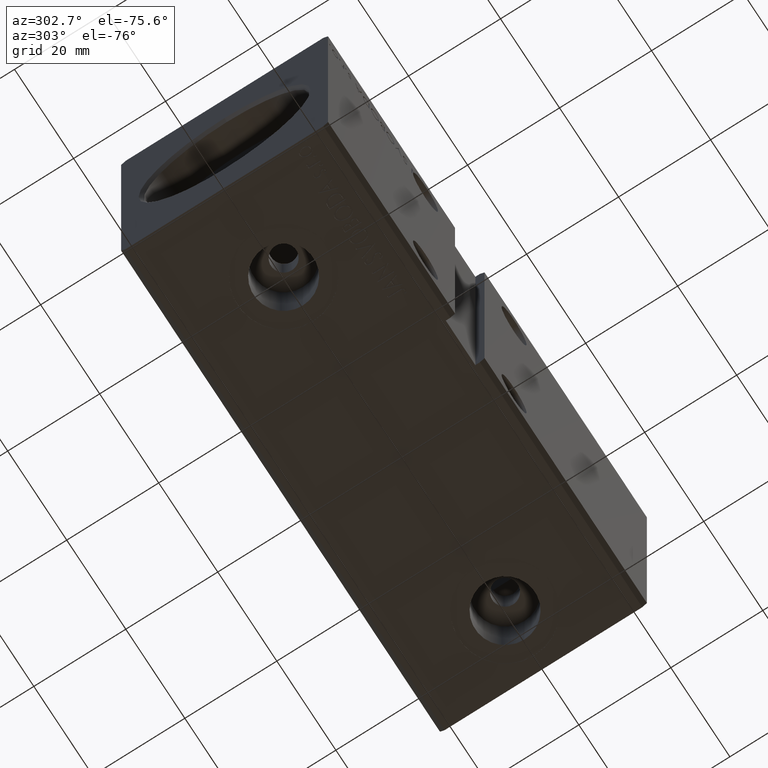
[diagram: clean part render]
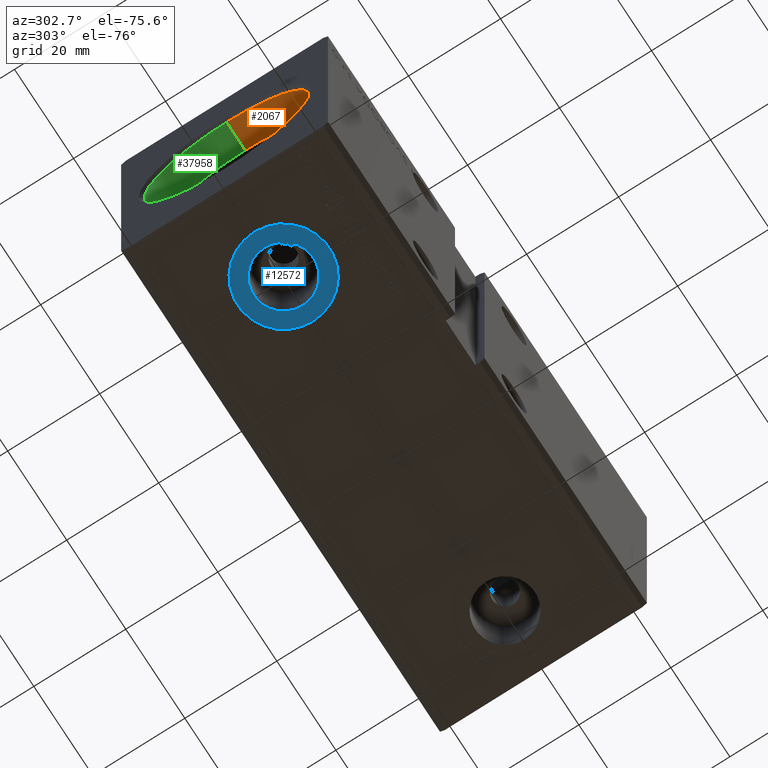
[diagram: same view with three faces highlighted in distinct colors, each labeled with its STEP entity id]
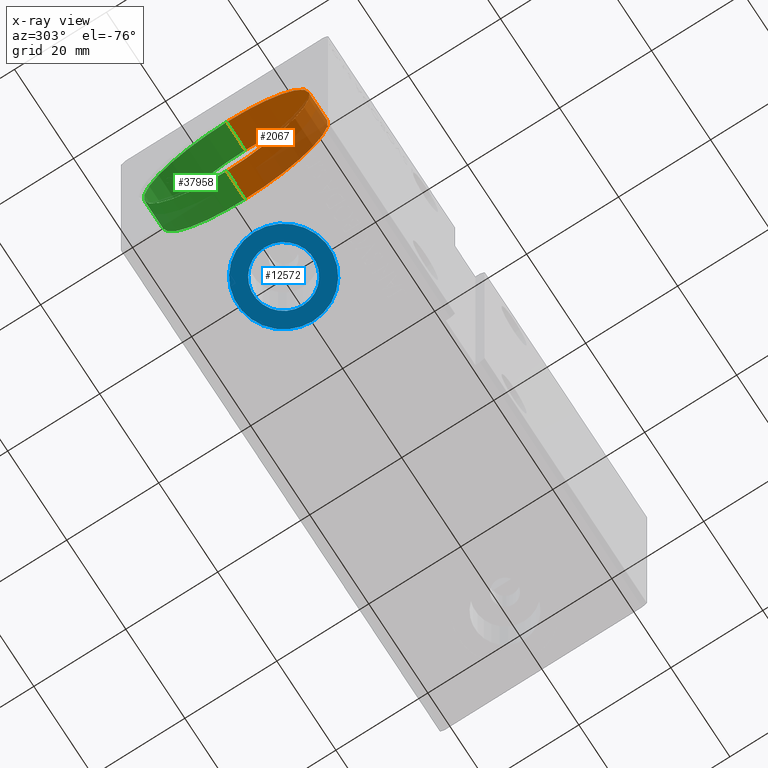
[diagram: x-ray of the same camera — body ghosted, the three highlighted faces saturated]
A machine part, auxiliary view with three faces highlighted in distinct colors.
The next image is the same camera in x-ray (body ghosted, the three faces saturated) — at least one of them is partly hidden behind the body in this view.
Their STEP definitions:

[orange] entity #2067 — the highlighted cylindrical surface (partial cylindrical patch) has radius 18 mm, axis along (-1, -0, -0).
#1078 = CARTESIAN_POINT ( 'NONE',  ( 7.000000000000000000, 0.000000000000000000, 0.000000000000000000 ) ) ;
#2067 = ADVANCED_FACE ( 'NONE', ( #19188 ), #12891, .F. ) ;
#2578 = DIRECTION ( 'NONE',  ( -1.000000000000000000, -0.000000000000000000, -0.000000000000000000 ) ) ;
#2630 = ORIENTED_EDGE ( 'NONE', *, *, #33976, .F. ) ;
#4159 = CIRCLE ( 'NONE', #20358, 18.00000000000000000 ) ;
#4704 = DIRECTION ( 'NONE',  ( -1.000000000000000000, 0.000000000000000000, 0.000000000000000000 ) ) ;
#5691 = CARTESIAN_POINT ( 'NONE',  ( 0.6999999999999749756, 0.000000000000000000, 0.000000000000000000 ) ) ;
#8203 = LINE ( 'NONE', #30122, #35427 ) ;
#8931 = EDGE_CURVE ( 'NONE', #12259, #38216, #30375, .T. ) ;
#9792 = VERTEX_POINT ( 'NONE', #25535 ) ;
#10109 = CARTESIAN_POINT ( 'NONE',  ( 7.000000000000000000, 2.204364238465235428E-15, -18.00000000000000000 ) ) ;
#10661 = AXIS2_PLACEMENT_3D ( 'NONE', #5691, #14839, #39817 ) ;
#10937 = ORIENTED_EDGE ( 'NONE', *, *, #28567, .T. ) ;
#12259 = VERTEX_POINT ( 'NONE', #10109 ) ;
#12891 = CYLINDRICAL_SURFACE ( 'NONE', #19920, 18.00000000000000000 ) ;
#13664 = EDGE_CURVE ( 'NONE', #12259, #9792, #4159, .T. ) ;
#13816 = CARTESIAN_POINT ( 'NONE',  ( 0.6999999999999749756, 2.204364238465235428E-15, -18.00000000000000000 ) ) ;
#14839 = DIRECTION ( 'NONE',  ( -1.000000000000000000, 0.000000000000000000, 0.000000000000000000 ) ) ;
#16132 = DIRECTION ( 'NONE',  ( -1.000000000000000000, -0.000000000000000000, -0.000000000000000000 ) ) ;
#16325 = CARTESIAN_POINT ( 'NONE',  ( 7.000000000000000000, 0.000000000000000000, 0.000000000000000000 ) ) ;
#19188 = FACE_OUTER_BOUND ( 'NONE', #23219, .T. ) ;
#19345 = VERTEX_POINT ( 'NONE', #29396 ) ;
#19920 = AXIS2_PLACEMENT_3D ( 'NONE', #16325, #16132, #28514 ) ;
#20358 = AXIS2_PLACEMENT_3D ( 'NONE', #1078, #4704, #38041 ) ;
#20412 = CIRCLE ( 'NONE', #10661, 18.00000000000000000 ) ;
#23219 = EDGE_LOOP ( 'NONE', ( #24792, #30816, #10937, #2630 ) ) ;
#24042 = DIRECTION ( 'NONE',  ( -1.000000000000000000, -0.000000000000000000, -0.000000000000000000 ) ) ;
#24792 = ORIENTED_EDGE ( 'NONE', *, *, #13664, .F. ) ;
#25535 = CARTESIAN_POINT ( 'NONE',  ( 7.000000000000000000, 0.000000000000000000, 18.00000000000000000 ) ) ;
#26517 = VECTOR ( 'NONE', #2578, 1000.000000000000000 ) ;
#28514 = DIRECTION ( 'NONE',  ( 0.000000000000000000, 0.000000000000000000, 1.000000000000000000 ) ) ;
#28567 = EDGE_CURVE ( 'NONE', #38216, #19345, #20412, .T. ) ;
#29396 = CARTESIAN_POINT ( 'NONE',  ( 0.6999999999999749756, 0.000000000000000000, 18.00000000000000000 ) ) ;
#30122 = CARTESIAN_POINT ( 'NONE',  ( 7.000000000000000000, 0.000000000000000000, 18.00000000000000000 ) ) ;
#30375 = LINE ( 'NONE', #33220, #26517 ) ;
#30816 = ORIENTED_EDGE ( 'NONE', *, *, #8931, .T. ) ;
#33220 = CARTESIAN_POINT ( 'NONE',  ( 7.000000000000000000, 2.204364238465235428E-15, -18.00000000000000000 ) ) ;
#33976 = EDGE_CURVE ( 'NONE', #9792, #19345, #8203, .T. ) ;
#35427 = VECTOR ( 'NONE', #24042, 1000.000000000000000 ) ;
#38041 = DIRECTION ( 'NONE',  ( 0.000000000000000000, 0.000000000000000000, 1.000000000000000000 ) ) ;
#38216 = VERTEX_POINT ( 'NONE', #13816 ) ;
#39817 = DIRECTION ( 'NONE',  ( 0.000000000000000000, 0.000000000000000000, -1.000000000000000000 ) ) ;

[blue] entity #12572 — the highlighted planar face has unit normal (0, 0, -1).
#107 = CARTESIAN_POINT ( 'NONE',  ( 19.99999999999999645, 2.578758962896938545E-15, -32.39999999999999858 ) ) ;
#1364 = DIRECTION ( 'NONE',  ( -1.000000000000000000, 0.000000000000000000, 0.000000000000000000 ) ) ;
#1715 = CARTESIAN_POINT ( 'NONE',  ( 0.000000000000000000, 0.000000000000000000, -32.39999999999999858 ) ) ;
#1761 = DIRECTION ( 'NONE',  ( 0.000000000000000000, 0.000000000000000000, -1.000000000000000000 ) ) ;
#3657 = EDGE_LOOP ( 'NONE', ( #23078, #34372 ) ) ;
#4158 = DIRECTION ( 'NONE',  ( 0.000000000000000000, 0.000000000000000000, -1.000000000000000000 ) ) ;
#4944 = VERTEX_POINT ( 'NONE', #39006 ) ;
#4993 = CARTESIAN_POINT ( 'NONE',  ( 26.49999999999999645, 3.374779382342717797E-15, -32.39999999999999858 ) ) ;
#6585 = DIRECTION ( 'NONE',  ( 0.000000000000000000, 0.000000000000000000, -1.000000000000000000 ) ) ;
#7596 = PLANE ( 'NONE',  #17754 ) ;
#8137 = CIRCLE ( 'NONE', #35368, 10.00000000000000000 ) ;
#11200 = CARTESIAN_POINT ( 'NONE',  ( 19.99999999999999645, 2.578758962896937757E-15, -32.39999999999999858 ) ) ;
#11421 = VERTEX_POINT ( 'NONE', #20348 ) ;
#11593 = AXIS2_PLACEMENT_3D ( 'NONE', #107, #6585, #25069 ) ;
#12385 = EDGE_CURVE ( 'NONE', #27926, #11421, #13864, .T. ) ;
#12572 = ADVANCED_FACE ( 'NONE', ( #13708, #28934 ), #7596, .T. ) ;
#13687 = CARTESIAN_POINT ( 'NONE',  ( 30.00000000000000000, 3.803405762044290421E-15, -32.39999999999999858 ) ) ;
#13708 = FACE_BOUND ( 'NONE', #3657, .T. ) ;
#13864 = CIRCLE ( 'NONE', #19077, 6.499999999999999112 ) ;
#14405 = EDGE_LOOP ( 'NONE', ( #15965, #20748 ) ) ;
#14460 = DIRECTION ( 'NONE',  ( 0.000000000000000000, 0.000000000000000000, -1.000000000000000000 ) ) ;
#15610 = DIRECTION ( 'NONE',  ( -1.000000000000000000, 0.000000000000000000, 0.000000000000000000 ) ) ;
#15965 = ORIENTED_EDGE ( 'NONE', *, *, #31646, .T. ) ;
#17754 = AXIS2_PLACEMENT_3D ( 'NONE', #1715, #4158, #22834 ) ;
#18625 = EDGE_CURVE ( 'NONE', #11421, #27926, #32341, .T. ) ;
#19077 = AXIS2_PLACEMENT_3D ( 'NONE', #38518, #1761, #1364 ) ;
#19525 = VERTEX_POINT ( 'NONE', #13687 ) ;
#20348 = CARTESIAN_POINT ( 'NONE',  ( 13.49999999999999822, 2.578758962896938545E-15, -32.39999999999999858 ) ) ;
#20748 = ORIENTED_EDGE ( 'NONE', *, *, #34600, .T. ) ;
#22834 = DIRECTION ( 'NONE',  ( -1.000000000000000000, 0.000000000000000000, -0.000000000000000000 ) ) ;
#23078 = ORIENTED_EDGE ( 'NONE', *, *, #18625, .F. ) ;
#25069 = DIRECTION ( 'NONE',  ( -1.000000000000000000, 0.000000000000000000, 0.000000000000000000 ) ) ;
#27926 = VERTEX_POINT ( 'NONE', #4993 ) ;
#28934 = FACE_OUTER_BOUND ( 'NONE', #14405, .T. ) ;
#29594 = CIRCLE ( 'NONE', #30258, 10.00000000000000000 ) ;
#30258 = AXIS2_PLACEMENT_3D ( 'NONE', #39997, #40197, #15610 ) ;
#31646 = EDGE_CURVE ( 'NONE', #4944, #19525, #8137, .T. ) ;
#32341 = CIRCLE ( 'NONE', #11593, 6.499999999999999112 ) ;
#34372 = ORIENTED_EDGE ( 'NONE', *, *, #12385, .F. ) ;
#34600 = EDGE_CURVE ( 'NONE', #19525, #4944, #29594, .T. ) ;
#35368 = AXIS2_PLACEMENT_3D ( 'NONE', #11200, #14460, #39439 ) ;
#38518 = CARTESIAN_POINT ( 'NONE',  ( 19.99999999999999645, 2.578758962896938545E-15, -32.39999999999999858 ) ) ;
#39006 = CARTESIAN_POINT ( 'NONE',  ( 9.999999999999996447, 2.578758962896937757E-15, -32.39999999999999858 ) ) ;
#39439 = DIRECTION ( 'NONE',  ( -1.000000000000000000, 0.000000000000000000, 0.000000000000000000 ) ) ;
#39997 = CARTESIAN_POINT ( 'NONE',  ( 19.99999999999999645, 2.578758962896937757E-15, -32.39999999999999858 ) ) ;
#40197 = DIRECTION ( 'NONE',  ( 0.000000000000000000, 0.000000000000000000, -1.000000000000000000 ) ) ;

[green] entity #37958 — the highlighted cylindrical surface (partial cylindrical patch) has radius 18 mm, axis along (-1, -0, -0).
#1194 = AXIS2_PLACEMENT_3D ( 'NONE', #19773, #32157, #25664 ) ;
#2578 = DIRECTION ( 'NONE',  ( -1.000000000000000000, -0.000000000000000000, -0.000000000000000000 ) ) ;
#3214 = ORIENTED_EDGE ( 'NONE', *, *, #40138, .F. ) ;
#8054 = CIRCLE ( 'NONE', #15872, 18.00000000000000000 ) ;
#8203 = LINE ( 'NONE', #30122, #35427 ) ;
#8375 = FACE_OUTER_BOUND ( 'NONE', #12392, .T. ) ;
#8779 = CARTESIAN_POINT ( 'NONE',  ( 7.000000000000000000, 0.000000000000000000, 0.000000000000000000 ) ) ;
#8931 = EDGE_CURVE ( 'NONE', #12259, #38216, #30375, .T. ) ;
#9792 = VERTEX_POINT ( 'NONE', #25535 ) ;
#10109 = CARTESIAN_POINT ( 'NONE',  ( 7.000000000000000000, 2.204364238465235428E-15, -18.00000000000000000 ) ) ;
#10985 = DIRECTION ( 'NONE',  ( 0.000000000000000000, 0.000000000000000000, -1.000000000000000000 ) ) ;
#12259 = VERTEX_POINT ( 'NONE', #10109 ) ;
#12392 = EDGE_LOOP ( 'NONE', ( #39711, #3214, #24572, #33216 ) ) ;
#13816 = CARTESIAN_POINT ( 'NONE',  ( 0.6999999999999749756, 2.204364238465235428E-15, -18.00000000000000000 ) ) ;
#13835 = DIRECTION ( 'NONE',  ( -1.000000000000000000, 0.000000000000000000, 0.000000000000000000 ) ) ;
#15872 = AXIS2_PLACEMENT_3D ( 'NONE', #17490, #13835, #10985 ) ;
#17490 = CARTESIAN_POINT ( 'NONE',  ( 0.6999999999999749756, 0.000000000000000000, 0.000000000000000000 ) ) ;
#19345 = VERTEX_POINT ( 'NONE', #29396 ) ;
#19773 = CARTESIAN_POINT ( 'NONE',  ( 7.000000000000000000, 0.000000000000000000, 0.000000000000000000 ) ) ;
#23190 = EDGE_CURVE ( 'NONE', #19345, #38216, #8054, .T. ) ;
#24042 = DIRECTION ( 'NONE',  ( -1.000000000000000000, -0.000000000000000000, -0.000000000000000000 ) ) ;
#24572 = ORIENTED_EDGE ( 'NONE', *, *, #33976, .T. ) ;
#25535 = CARTESIAN_POINT ( 'NONE',  ( 7.000000000000000000, 0.000000000000000000, 18.00000000000000000 ) ) ;
#25664 = DIRECTION ( 'NONE',  ( 0.000000000000000000, 0.000000000000000000, 1.000000000000000000 ) ) ;
#26517 = VECTOR ( 'NONE', #2578, 1000.000000000000000 ) ;
#27103 = CIRCLE ( 'NONE', #1194, 18.00000000000000000 ) ;
#29014 = AXIS2_PLACEMENT_3D ( 'NONE', #8779, #39444, #35990 ) ;
#29396 = CARTESIAN_POINT ( 'NONE',  ( 0.6999999999999749756, 0.000000000000000000, 18.00000000000000000 ) ) ;
#30122 = CARTESIAN_POINT ( 'NONE',  ( 7.000000000000000000, 0.000000000000000000, 18.00000000000000000 ) ) ;
#30375 = LINE ( 'NONE', #33220, #26517 ) ;
#32157 = DIRECTION ( 'NONE',  ( -1.000000000000000000, 0.000000000000000000, 0.000000000000000000 ) ) ;
#33145 = CYLINDRICAL_SURFACE ( 'NONE', #29014, 18.00000000000000000 ) ;
#33216 = ORIENTED_EDGE ( 'NONE', *, *, #23190, .T. ) ;
#33220 = CARTESIAN_POINT ( 'NONE',  ( 7.000000000000000000, 2.204364238465235428E-15, -18.00000000000000000 ) ) ;
#33976 = EDGE_CURVE ( 'NONE', #9792, #19345, #8203, .T. ) ;
#35427 = VECTOR ( 'NONE', #24042, 1000.000000000000000 ) ;
#35990 = DIRECTION ( 'NONE',  ( 0.000000000000000000, 0.000000000000000000, 1.000000000000000000 ) ) ;
#37958 = ADVANCED_FACE ( 'NONE', ( #8375 ), #33145, .F. ) ;
#38216 = VERTEX_POINT ( 'NONE', #13816 ) ;
#39444 = DIRECTION ( 'NONE',  ( -1.000000000000000000, -0.000000000000000000, -0.000000000000000000 ) ) ;
#39711 = ORIENTED_EDGE ( 'NONE', *, *, #8931, .F. ) ;
#40138 = EDGE_CURVE ( 'NONE', #9792, #12259, #27103, .T. ) ;